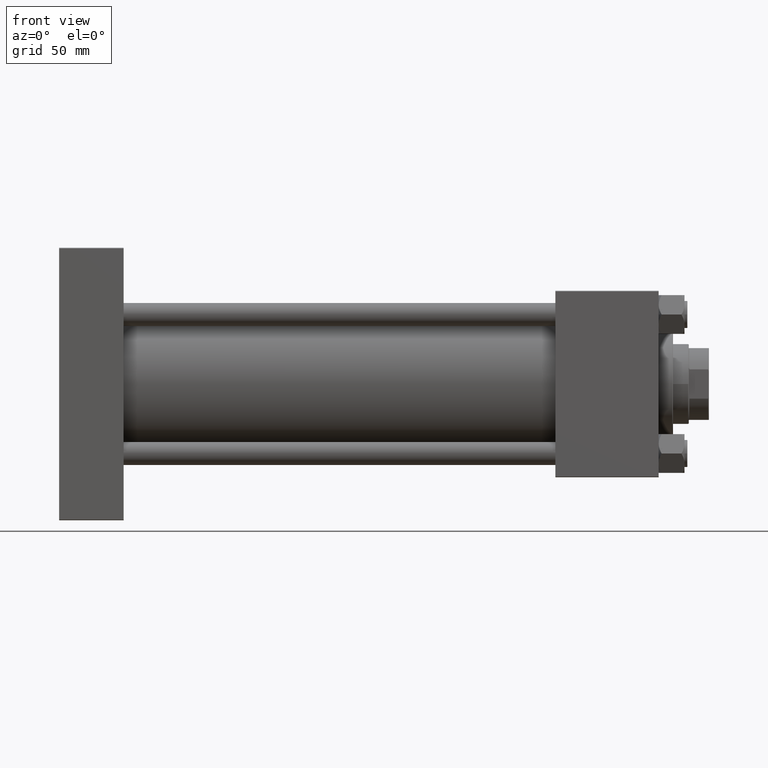
[diagram: clean part render]
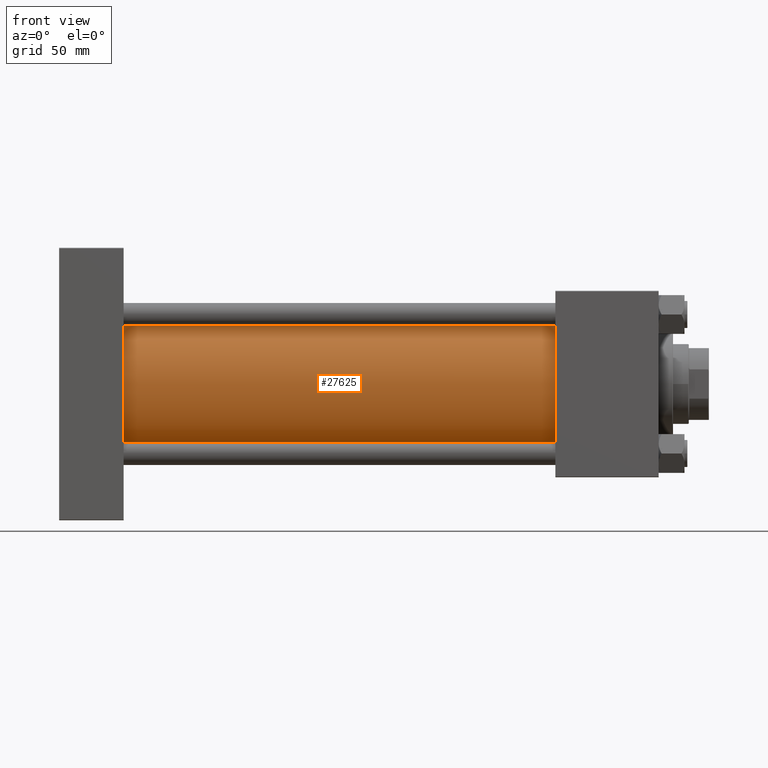
[diagram: same view with one face highlighted and labeled with its STEP entity id]
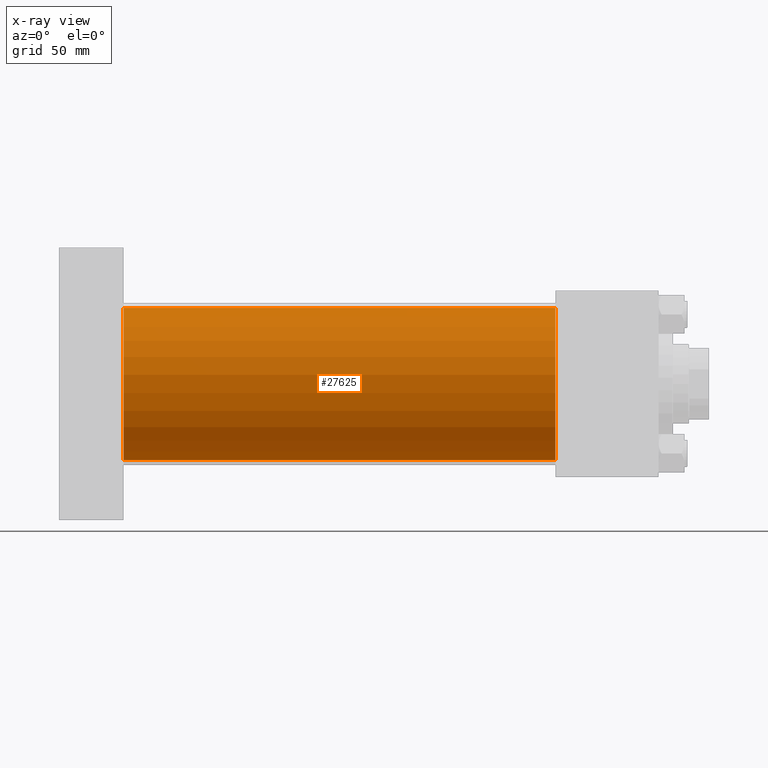
[diagram: x-ray of the same camera — body ghosted, the highlighted face saturated]
A machine part, front view. The second image highlights one B-rep face of the part: STEP entity #27625.
The next image is the same camera in x-ray: the body ghosted, the highlighted face saturated — about 0% of this face is hidden behind the body in this view.
In plain terms, the highlighted cylindrical surface (partial cylindrical patch) has radius 53 mm, axis along (-1, -0, -0).
Its self-contained STEP definition (entity closure, byte-faithful):
#994 = DIRECTION ( 'NONE',  ( -1.000000000000000000, -0.000000000000000000, -0.000000000000000000 ) ) ;
#1174 = CARTESIAN_POINT ( 'NONE',  ( 346.0000000000000000, -2.602085213965210642E-15, 0.000000000000000000 ) ) ;
#1461 = ORIENTED_EDGE ( 'NONE', *, *, #49088, .T. ) ;
#4660 = CARTESIAN_POINT ( 'NONE',  ( 44.99999999999998579, -2.602085213965210642E-15, 0.000000000000000000 ) ) ;
#6518 = CARTESIAN_POINT ( 'NONE',  ( 44.99999999999998579, -2.602085213965210642E-15, 53.00000000000000711 ) ) ;
#7501 = LINE ( 'NONE', #47934, #40610 ) ;
#8625 = AXIS2_PLACEMENT_3D ( 'NONE', #1174, #38671, #46659 ) ;
#9616 = DIRECTION ( 'NONE',  ( 0.000000000000000000, 0.000000000000000000, 1.000000000000000000 ) ) ;
#10411 = DIRECTION ( 'NONE',  ( -1.000000000000000000, -0.000000000000000000, -0.000000000000000000 ) ) ;
#10860 = VERTEX_POINT ( 'NONE', #17932 ) ;
#13077 = DIRECTION ( 'NONE',  ( -1.000000000000000000, -0.000000000000000000, -0.000000000000000000 ) ) ;
#16353 = CARTESIAN_POINT ( 'NONE',  ( 44.99999999999998579, 3.888542821515762466E-15, -53.00000000000000711 ) ) ;
#16718 = VERTEX_POINT ( 'NONE', #33743 ) ;
#17096 = EDGE_CURVE ( 'NONE', #16718, #10860, #36658, .T. ) ;
#17932 = CARTESIAN_POINT ( 'NONE',  ( 346.0000000000000000, 3.888542821515762466E-15, -53.00000000000000711 ) ) ;
#19419 = VERTEX_POINT ( 'NONE', #16353 ) ;
#24063 = ORIENTED_EDGE ( 'NONE', *, *, #34967, .T. ) ;
#25067 = FACE_OUTER_BOUND ( 'NONE', #28854, .T. ) ;
#25713 = AXIS2_PLACEMENT_3D ( 'NONE', #4660, #33897, #45863 ) ;
#27625 = ADVANCED_FACE ( 'NONE', ( #25067 ), #37300, .T. ) ;
#28854 = EDGE_LOOP ( 'NONE', ( #37603, #50951, #24063, #1461 ) ) ;
#29512 = VECTOR ( 'NONE', #994, 1000.000000000000000 ) ;
#32924 = LINE ( 'NONE', #49665, #29512 ) ;
#33488 = AXIS2_PLACEMENT_3D ( 'NONE', #46073, #13077, #9616 ) ;
#33743 = CARTESIAN_POINT ( 'NONE',  ( 346.0000000000000000, -2.602085213965210642E-15, 53.00000000000000711 ) ) ;
#33897 = DIRECTION ( 'NONE',  ( 1.000000000000000000, -0.000000000000000000, 0.000000000000000000 ) ) ;
#34967 = EDGE_CURVE ( 'NONE', #16718, #41445, #32924, .T. ) ;
#35412 = EDGE_CURVE ( 'NONE', #10860, #19419, #7501, .T. ) ;
#36658 = CIRCLE ( 'NONE', #8625, 53.00000000000000711 ) ;
#37300 = CYLINDRICAL_SURFACE ( 'NONE', #33488, 53.00000000000000711 ) ;
#37603 = ORIENTED_EDGE ( 'NONE', *, *, #35412, .F. ) ;
#38671 = DIRECTION ( 'NONE',  ( 1.000000000000000000, 0.000000000000000000, 0.000000000000000000 ) ) ;
#40610 = VECTOR ( 'NONE', #10411, 1000.000000000000000 ) ;
#41445 = VERTEX_POINT ( 'NONE', #6518 ) ;
#41813 = CIRCLE ( 'NONE', #25713, 53.00000000000000711 ) ;
#45863 = DIRECTION ( 'NONE',  ( 0.000000000000000000, 0.000000000000000000, 1.000000000000000000 ) ) ;
#46073 = CARTESIAN_POINT ( 'NONE',  ( 346.0000000000000000, -2.602085213965210642E-15, 0.000000000000000000 ) ) ;
#46659 = DIRECTION ( 'NONE',  ( 0.000000000000000000, 0.000000000000000000, -1.000000000000000000 ) ) ;
#47934 = CARTESIAN_POINT ( 'NONE',  ( 346.0000000000000000, 3.888542821515762466E-15, -53.00000000000000711 ) ) ;
#49088 = EDGE_CURVE ( 'NONE', #41445, #19419, #41813, .T. ) ;
#49665 = CARTESIAN_POINT ( 'NONE',  ( 346.0000000000000000, -2.602085213965210642E-15, 53.00000000000000711 ) ) ;
#50951 = ORIENTED_EDGE ( 'NONE', *, *, #17096, .F. ) ;